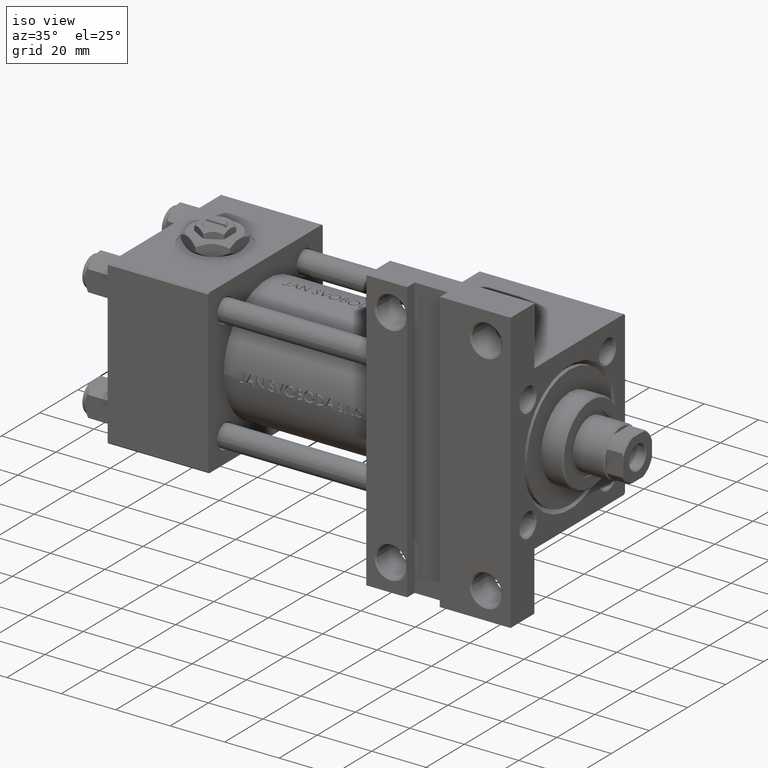
[diagram: clean part render]
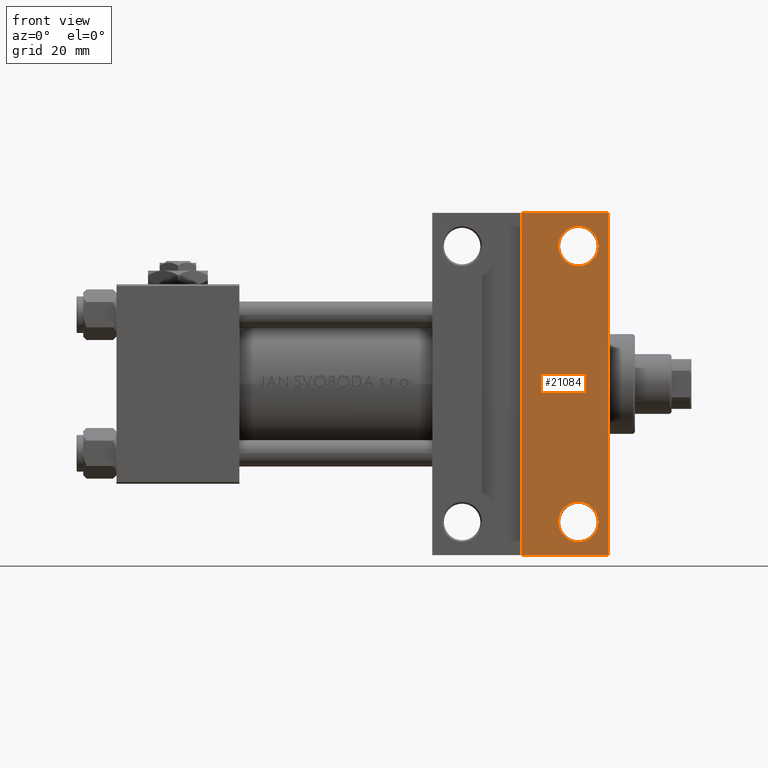
[diagram: tour spotlight — one face highlighted and labeled with its STEP entity id]
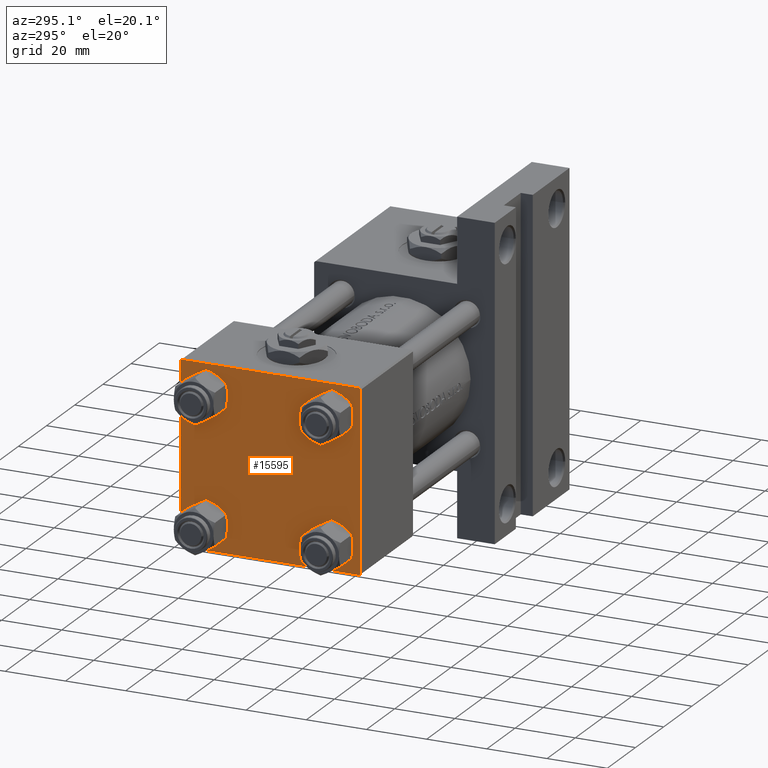
[diagram: tour spotlight — one face highlighted and labeled with its STEP entity id]
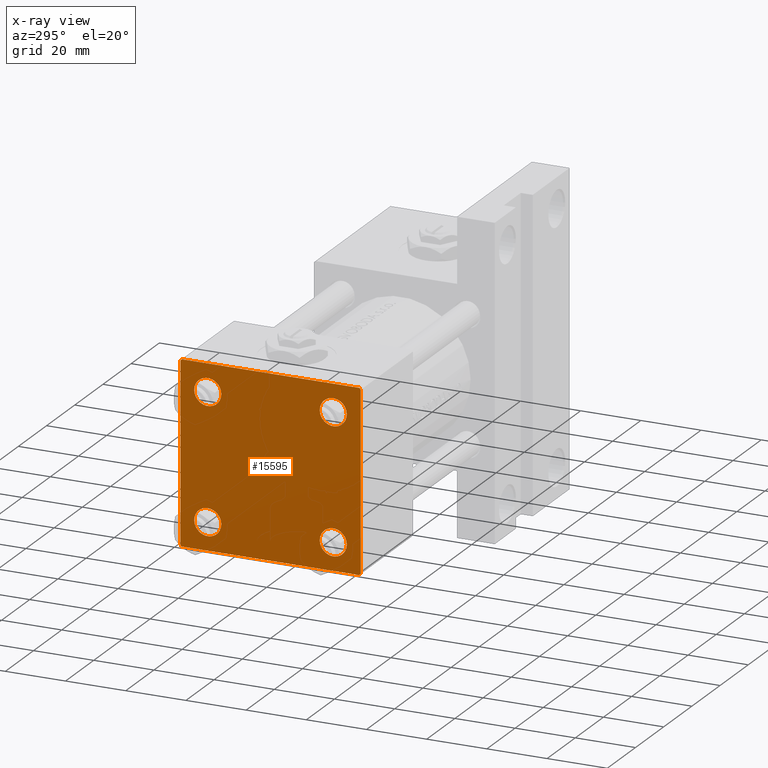
[diagram: x-ray of the same camera — body ghosted, this tour face saturated]
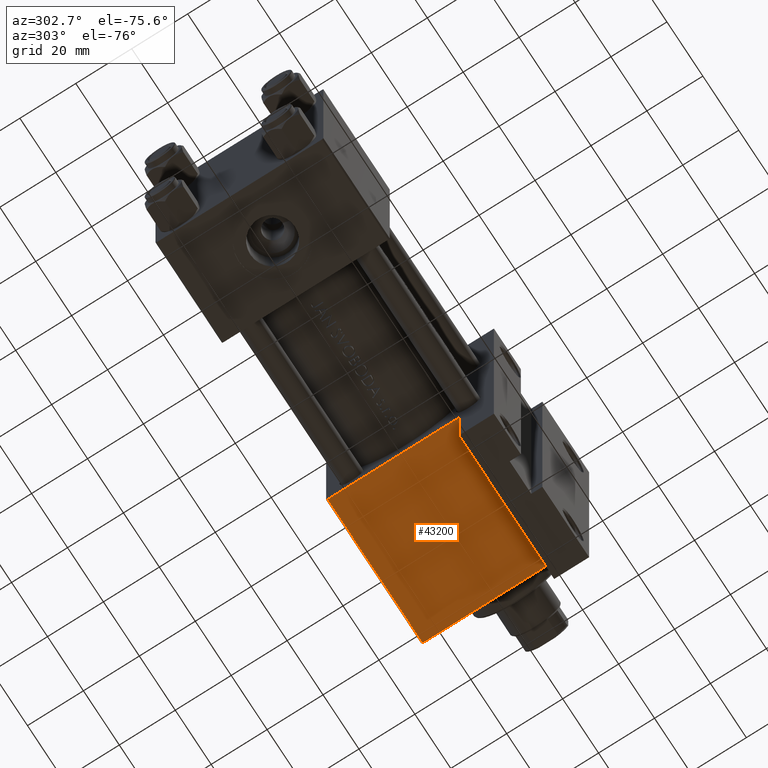
[diagram: tour spotlight — one face highlighted and labeled with its STEP entity id]
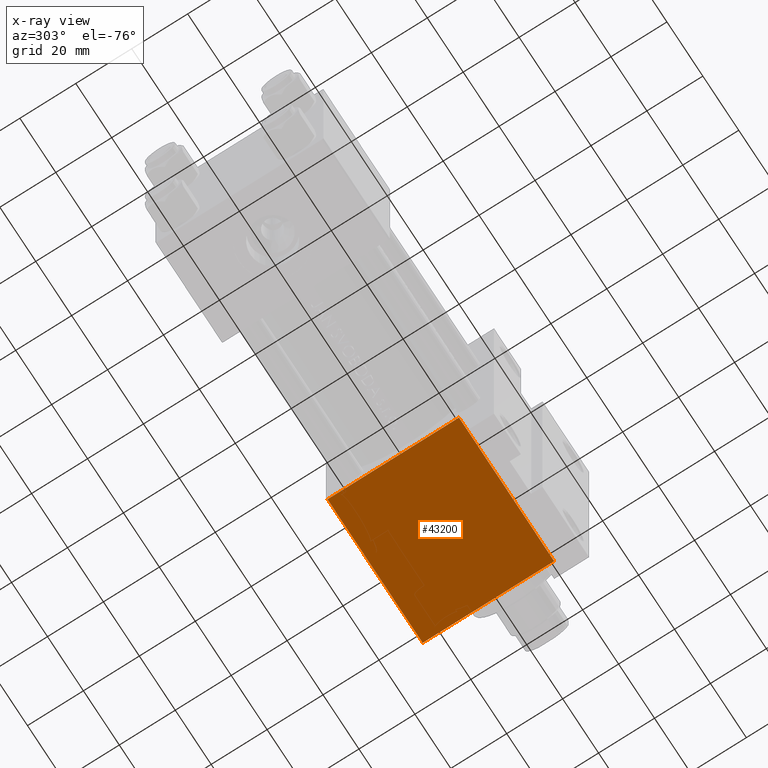
[diagram: x-ray of the same camera — body ghosted, this tour face saturated]
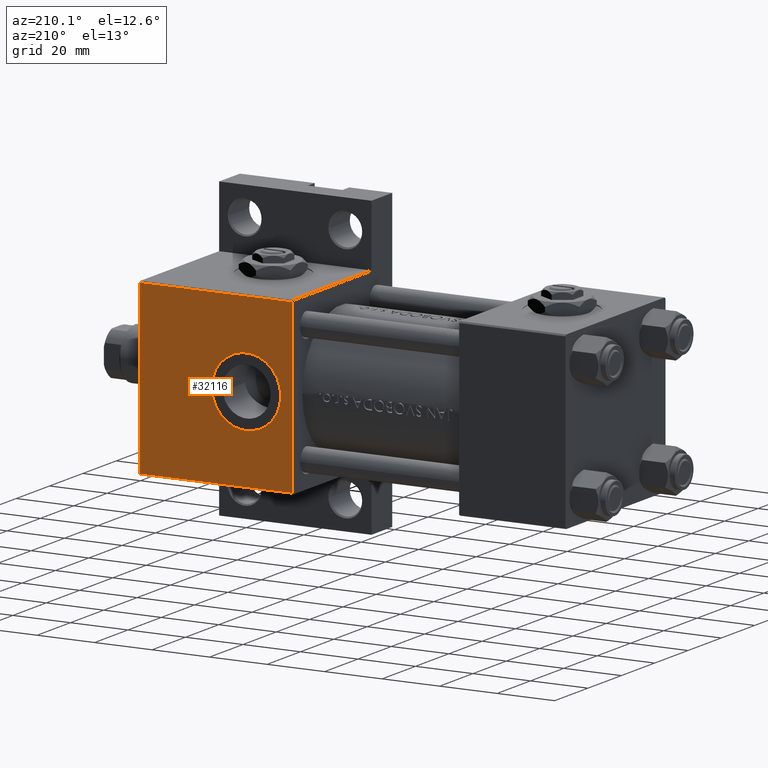
[diagram: tour spotlight — one face highlighted and labeled with its STEP entity id]
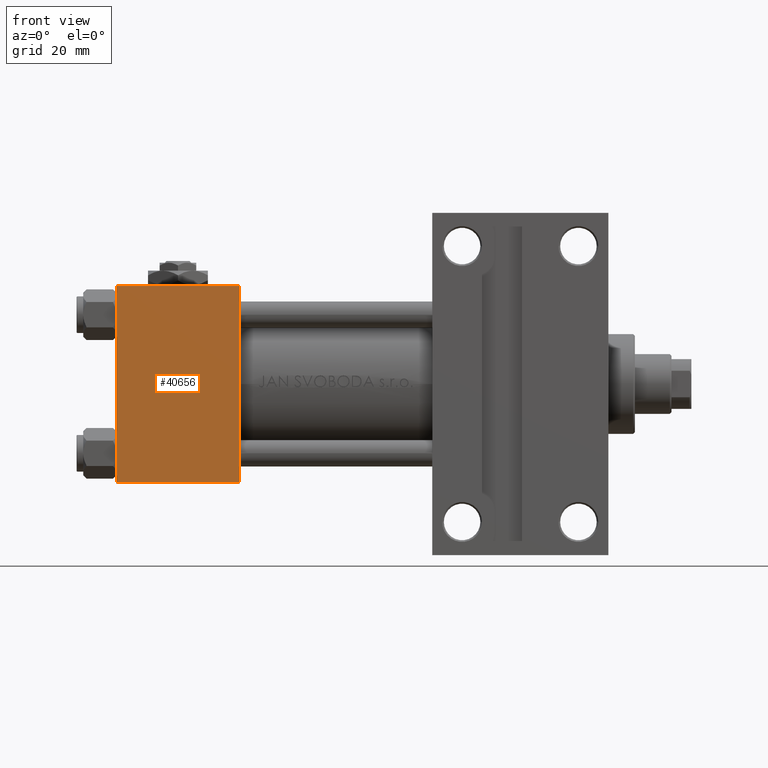
[diagram: tour spotlight — one face highlighted and labeled with its STEP entity id]
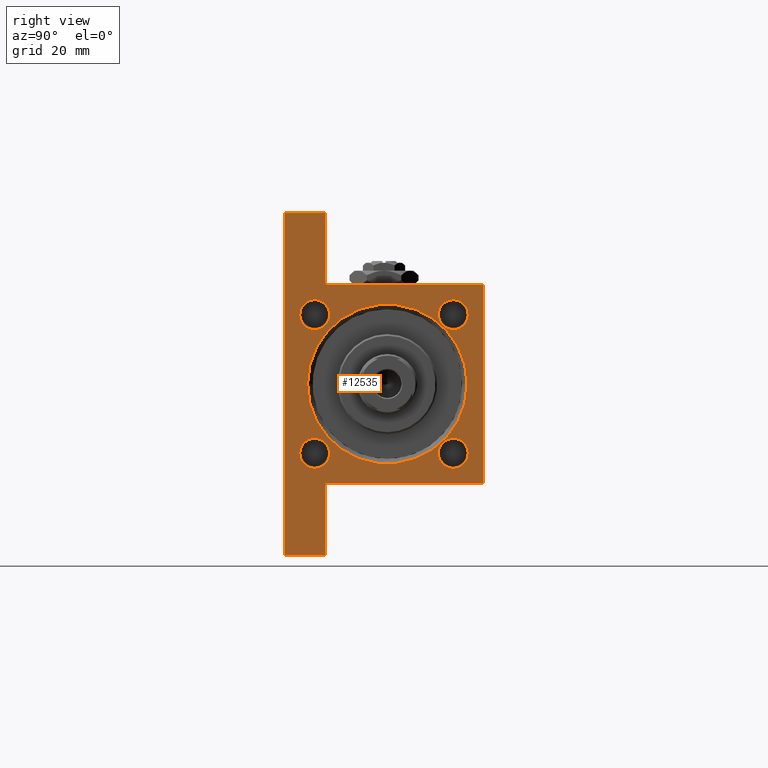
[diagram: tour spotlight — one face highlighted and labeled with its STEP entity id]
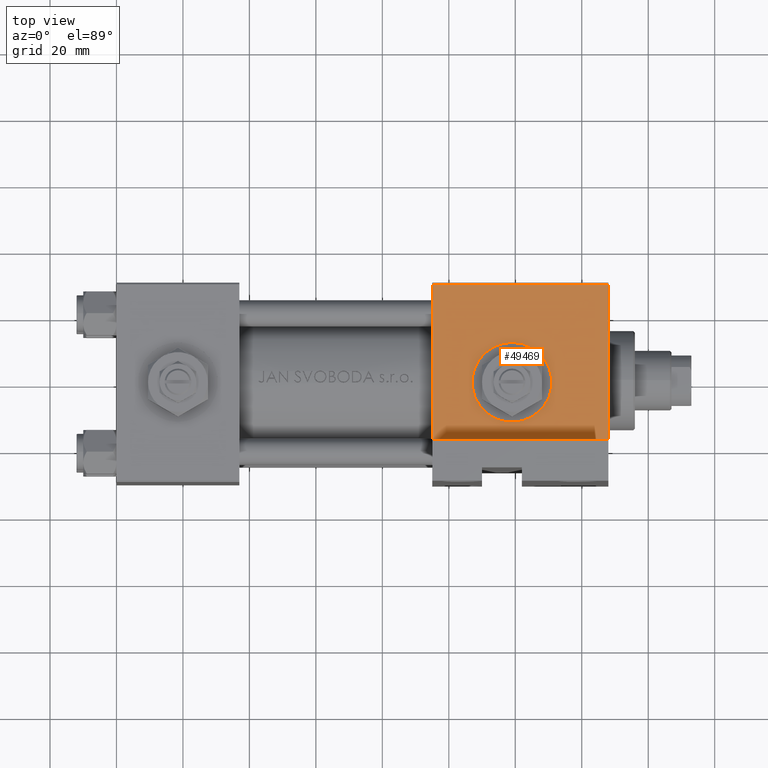
[diagram: tour spotlight — one face highlighted and labeled with its STEP entity id]
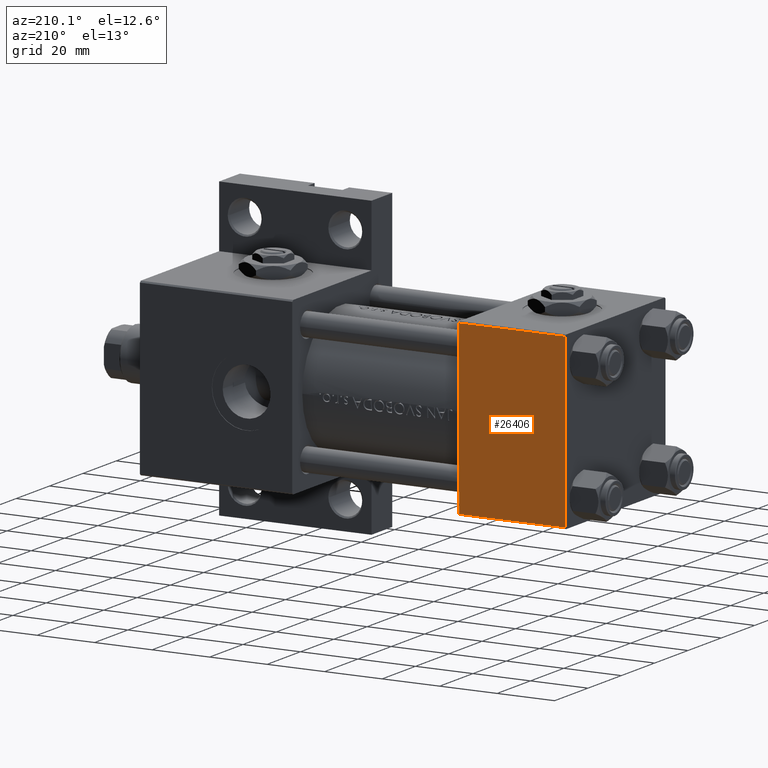
[diagram: tour spotlight — one face highlighted and labeled with its STEP entity id]
A machine part: a face-by-face anatomy tour. The part has 1215 B-rep faces; the first image is the clean iso view, then the 8 largest visible faces are spotlighted one at a time (largest first), each with its STEP entity span.

Face 1 — front view, entity #21084. In plain terms, the highlighted planar face has unit normal (0, -1, -0).
Definition (entity closure, byte-faithful):
#5 = DIRECTION ( 'NONE',  ( 0.000000000000000000, 1.156482317317871478E-16, -1.000000000000000000 ) ) ;
#73 = DIRECTION ( 'NONE',  ( -1.000000000000000000, -0.000000000000000000, -0.000000000000000000 ) ) ;
#717 = CARTESIAN_POINT ( 'NONE',  ( 138.9999999999999432, -41.50000000000000000, -30.00000000000000000 ) ) ;
#1910 = VERTEX_POINT ( 'NONE', #36913 ) ;
#2028 = VERTEX_POINT ( 'NONE', #23738 ) ;
#2398 = EDGE_LOOP ( 'NONE', ( #33150, #19636, #13471, #43222 ) ) ;
#2455 = CARTESIAN_POINT ( 'NONE',  ( 138.9999999999999432, -41.50000000000000000, -30.00000000000000000 ) ) ;
#3397 = LINE ( 'NONE', #34950, #11308 ) ;
#3834 = CARTESIAN_POINT ( 'NONE',  ( 148.0000000000000000, 30.00000000000000000, -29.99999999999999289 ) ) ;
#4335 = CIRCLE ( 'NONE', #7589, 5.999499999999962974 ) ;
#4573 = ORIENTED_EDGE ( 'NONE', *, *, #27141, .T. ) ;
#4603 = DIRECTION ( 'NONE',  ( 0.000000000000000000, 1.000000000000000000, 1.156482317317871478E-16 ) ) ;
#6635 = EDGE_CURVE ( 'NONE', #29939, #8865, #3397, .T. ) ;
#7512 = VECTOR ( 'NONE', #73, 1000.000000000000000 ) ;
#7589 = AXIS2_PLACEMENT_3D ( 'NONE', #19429, #15612, #11498 ) ;
#8716 = ORIENTED_EDGE ( 'NONE', *, *, #11161, .T. ) ;
#8865 = VERTEX_POINT ( 'NONE', #44891 ) ;
#8924 = CARTESIAN_POINT ( 'NONE',  ( 121.9999999999999858, -51.49999999999999289, -29.99999999999999645 ) ) ;
#9333 = ORIENTED_EDGE ( 'NONE', *, *, #29902, .T. ) ;
#9692 = DIRECTION ( 'NONE',  ( -0.000000000000000000, -1.000000000000000000, -0.000000000000000000 ) ) ;
#9785 = EDGE_CURVE ( 'NONE', #40105, #36055, #16403, .T. ) ;
#11161 = EDGE_CURVE ( 'NONE', #29509, #2028, #14465, .T. ) ;
#11202 = DIRECTION ( 'NONE',  ( -0.000000000000000000, -1.156482317317871478E-16, 1.000000000000000000 ) ) ;
#11308 = VECTOR ( 'NONE', #50618, 1000.000000000000000 ) ;
#11498 = DIRECTION ( 'NONE',  ( 0.000000000000000000, 1.000000000000000000, 0.000000000000000000 ) ) ;
#11712 = CARTESIAN_POINT ( 'NONE',  ( 138.9999999999999432, 41.50000000000000000, -29.99999999999999289 ) ) ;
#12041 = VECTOR ( 'NONE', #9692, 1000.000000000000000 ) ;
#12311 = FACE_BOUND ( 'NONE', #50244, .T. ) ;
#12781 = DIRECTION ( 'NONE',  ( -0.000000000000000000, -1.156482317317871478E-16, 1.000000000000000000 ) ) ;
#13471 = ORIENTED_EDGE ( 'NONE', *, *, #6635, .T. ) ;
#13751 = VECTOR ( 'NONE', #33998, 1000.000000000000000 ) ;
#14465 = CIRCLE ( 'NONE', #39844, 5.999499999999962974 ) ;
#15536 = AXIS2_PLACEMENT_3D ( 'NONE', #3834, #5, #4603 ) ;
#15612 = DIRECTION ( 'NONE',  ( -0.000000000000000000, -1.156482317317871478E-16, 1.000000000000000000 ) ) ;
#16403 = CIRCLE ( 'NONE', #42593, 5.999499999999990507 ) ;
#16427 = CARTESIAN_POINT ( 'NONE',  ( 133.0004999999999598, -41.50000000000000000, -30.00000000000000000 ) ) ;
#16646 = LINE ( 'NONE', #8924, #12041 ) ;
#18338 = CARTESIAN_POINT ( 'NONE',  ( 95.00000000000000000, 51.50000000000000711, -29.99999999999999645 ) ) ;
#19429 = CARTESIAN_POINT ( 'NONE',  ( 138.9999999999999432, 41.50000000000000000, -29.99999999999999289 ) ) ;
#19636 = ORIENTED_EDGE ( 'NONE', *, *, #44847, .T. ) ;
#21084 = ADVANCED_FACE ( 'NONE', ( #31805, #47482, #12311 ), #27190, .T. ) ;
#21293 = ORIENTED_EDGE ( 'NONE', *, *, #9785, .T. ) ;
#22908 = LINE ( 'NONE', #23392, #7512 ) ;
#23392 = CARTESIAN_POINT ( 'NONE',  ( 94.99999999999998579, -51.50000000000000711, -29.99999999999999645 ) ) ;
#23738 = CARTESIAN_POINT ( 'NONE',  ( 133.0004999999999882, 41.50000000000000000, -29.99999999999999289 ) ) ;
#23911 = CIRCLE ( 'NONE', #37876, 5.999499999999990507 ) ;
#24938 = CARTESIAN_POINT ( 'NONE',  ( 144.9994999999999550, -41.50000000000000000, -30.00000000000000000 ) ) ;
#25056 = DIRECTION ( 'NONE',  ( 0.000000000000000000, 1.000000000000000000, 0.000000000000000000 ) ) ;
#26281 = LINE ( 'NONE', #18338, #13751 ) ;
#27141 = EDGE_CURVE ( 'NONE', #36055, #40105, #23911, .T. ) ;
#27190 = PLANE ( 'NONE',  #15536 ) ;
#27321 = EDGE_LOOP ( 'NONE', ( #4573, #21293 ) ) ;
#27344 = DIRECTION ( 'NONE',  ( 0.000000000000000000, 1.000000000000000000, 0.000000000000000000 ) ) ;
#29509 = VERTEX_POINT ( 'NONE', #47477 ) ;
#29902 = EDGE_CURVE ( 'NONE', #2028, #29509, #4335, .T. ) ;
#29939 = VERTEX_POINT ( 'NONE', #42797 ) ;
#30031 = EDGE_CURVE ( 'NONE', #8865, #1910, #22908, .T. ) ;
#31805 = FACE_OUTER_BOUND ( 'NONE', #2398, .T. ) ;
#33150 = ORIENTED_EDGE ( 'NONE', *, *, #42464, .F. ) ;
#33998 = DIRECTION ( 'NONE',  ( 1.000000000000000000, -2.618450529776313247E-16, 0.000000000000000000 ) ) ;
#34017 = DIRECTION ( 'NONE',  ( 0.000000000000000000, 1.000000000000000000, 0.000000000000000000 ) ) ;
#34950 = CARTESIAN_POINT ( 'NONE',  ( 148.0000000000000000, 30.00000000000000000, -29.99999999999999289 ) ) ;
#36055 = VERTEX_POINT ( 'NONE', #16427 ) ;
#36870 = DIRECTION ( 'NONE',  ( -0.000000000000000000, -1.156482317317871478E-16, 1.000000000000000000 ) ) ;
#36913 = CARTESIAN_POINT ( 'NONE',  ( 121.9999999999999858, -51.49999999999999289, -29.99999999999999645 ) ) ;
#37876 = AXIS2_PLACEMENT_3D ( 'NONE', #2455, #36870, #34017 ) ;
#38217 = VERTEX_POINT ( 'NONE', #45156 ) ;
#39844 = AXIS2_PLACEMENT_3D ( 'NONE', #11712, #11202, #27344 ) ;
#40105 = VERTEX_POINT ( 'NONE', #24938 ) ;
#42464 = EDGE_CURVE ( 'NONE', #38217, #1910, #16646, .T. ) ;
#42593 = AXIS2_PLACEMENT_3D ( 'NONE', #717, #12781, #25056 ) ;
#42797 = CARTESIAN_POINT ( 'NONE',  ( 148.0000000000000000, 51.49999999999999289, -29.99999999999999645 ) ) ;
#43222 = ORIENTED_EDGE ( 'NONE', *, *, #30031, .T. ) ;
#44847 = EDGE_CURVE ( 'NONE', #38217, #29939, #26281, .T. ) ;
#44891 = CARTESIAN_POINT ( 'NONE',  ( 148.0000000000000000, -51.50000000000000711, -29.99999999999999645 ) ) ;
#45156 = CARTESIAN_POINT ( 'NONE',  ( 121.9999999999999858, 51.50000000000000711, -29.99999999999999645 ) ) ;
#47477 = CARTESIAN_POINT ( 'NONE',  ( 144.9994999999999266, 41.50000000000000000, -29.99999999999999289 ) ) ;
#47482 = FACE_BOUND ( 'NONE', #27321, .T. ) ;
#50244 = EDGE_LOOP ( 'NONE', ( #9333, #8716 ) ) ;
#50618 = DIRECTION ( 'NONE',  ( 0.000000000000000000, -1.000000000000000000, -1.156482317317871478E-16 ) ) ;

Face 2 — auxiliary view, entity #15595. An x-ray twin of the same camera follows (body ghosted, this face saturated) — the face is partly hidden behind the body. In plain terms, the highlighted planar face has unit normal (-1, 0, -0).
Definition (entity closure, byte-faithful):
#1312 = CARTESIAN_POINT ( 'NONE',  ( 0.000000000000000000, -29.49999999999998579, 29.99999999999999289 ) ) ;
#1816 = CARTESIAN_POINT ( 'NONE',  ( 0.000000000000000000, 20.84999999999999787, -16.34999999999998366 ) ) ;
#1828 = VECTOR ( 'NONE', #9713, 1000.000000000000114 ) ;
#2154 = ORIENTED_EDGE ( 'NONE', *, *, #27610, .T. ) ;
#2324 = CARTESIAN_POINT ( 'NONE',  ( 0.000000000000000000, 20.84999999999999787, -25.35000000000001918 ) ) ;
#2488 = ORIENTED_EDGE ( 'NONE', *, *, #23719, .T. ) ;
#2624 = VECTOR ( 'NONE', #21933, 1000.000000000000114 ) ;
#2674 = ORIENTED_EDGE ( 'NONE', *, *, #31800, .T. ) ;
#2782 = CARTESIAN_POINT ( 'NONE',  ( 0.000000000000000000, 20.84999999999999787, 20.85000000000000142 ) ) ;
#3057 = EDGE_CURVE ( 'NONE', #30359, #33464, #28402, .T. ) ;
#3102 = AXIS2_PLACEMENT_3D ( 'NONE', #43388, #9700, #23868 ) ;
#3391 = EDGE_CURVE ( 'NONE', #41797, #7950, #16148, .T. ) ;
#4515 = DIRECTION ( 'NONE',  ( 0.000000000000000000, -1.000000000000000000, -1.156482317317871725E-16 ) ) ;
#4825 = AXIS2_PLACEMENT_3D ( 'NONE', #2782, #22273, #34094 ) ;
#4939 = DIRECTION ( 'NONE',  ( 0.000000000000000000, 0.000000000000000000, 1.000000000000000000 ) ) ;
#5405 = DIRECTION ( 'NONE',  ( 0.000000000000000000, 0.000000000000000000, 1.000000000000000000 ) ) ;
#5843 = FACE_BOUND ( 'NONE', #24965, .T. ) ;
#5898 = EDGE_LOOP ( 'NONE', ( #33958, #35536 ) ) ;
#6182 = DIRECTION ( 'NONE',  ( 1.000000000000000000, -0.000000000000000000, 0.000000000000000000 ) ) ;
#6436 = CARTESIAN_POINT ( 'NONE',  ( 0.000000000000000000, -20.84999999999999076, -20.85000000000000497 ) ) ;
#6551 = CARTESIAN_POINT ( 'NONE',  ( 0.000000000000000000, 29.74999999999999645, 29.74999999999999645 ) ) ;
#6623 = CARTESIAN_POINT ( 'NONE',  ( 0.000000000000000000, 20.84999999999999787, 20.85000000000000142 ) ) ;
#7092 = CARTESIAN_POINT ( 'NONE',  ( 0.000000000000000000, 29.74999999999957723, -29.75000000000040501 ) ) ;
#7254 = DIRECTION ( 'NONE',  ( 0.000000000000000000, 0.000000000000000000, -1.000000000000000000 ) ) ;
#7274 = ORIENTED_EDGE ( 'NONE', *, *, #3057, .T. ) ;
#7723 = CARTESIAN_POINT ( 'NONE',  ( 0.000000000000000000, -20.84999999999999076, 20.85000000000000497 ) ) ;
#7950 = VERTEX_POINT ( 'NONE', #9658 ) ;
#8197 = VERTEX_POINT ( 'NONE', #42165 ) ;
#8732 = FACE_BOUND ( 'NONE', #5898, .T. ) ;
#8767 = EDGE_CURVE ( 'NONE', #7950, #41797, #25324, .T. ) ;
#8881 = VECTOR ( 'NONE', #28959, 1000.000000000000000 ) ;
#8957 = DIRECTION ( 'NONE',  ( 0.000000000000000000, -0.7071067811865474617, 0.7071067811865474617 ) ) ;
#9658 = CARTESIAN_POINT ( 'NONE',  ( 0.000000000000000000, 20.84999999999999787, 25.35000000000001918 ) ) ;
#9700 = DIRECTION ( 'NONE',  ( -1.000000000000000000, 0.000000000000000000, -0.000000000000000000 ) ) ;
#9713 = DIRECTION ( 'NONE',  ( -0.000000000000000000, 0.7071067811865474617, 0.7071067811865474617 ) ) ;
#9881 = ORIENTED_EDGE ( 'NONE', *, *, #33819, .T. ) ;
#10686 = CIRCLE ( 'NONE', #40182, 4.500000000000017764 ) ;
#10801 = ORIENTED_EDGE ( 'NONE', *, *, #18601, .F. ) ;
#10876 = CARTESIAN_POINT ( 'NONE',  ( 0.000000000000000000, -20.84999999999999076, -20.85000000000000497 ) ) ;
#11150 = CARTESIAN_POINT ( 'NONE',  ( 0.000000000000000000, 29.99999999999999289, -29.50000000000000000 ) ) ;
#11179 = ORIENTED_EDGE ( 'NONE', *, *, #25491, .T. ) ;
#11199 = AXIS2_PLACEMENT_3D ( 'NONE', #6623, #37953, #34089 ) ;
#11240 = ORIENTED_EDGE ( 'NONE', *, *, #27120, .T. ) ;
#11523 = VERTEX_POINT ( 'NONE', #1816 ) ;
#12483 = CARTESIAN_POINT ( 'NONE',  ( 0.000000000000000000, 29.99999999999999289, -30.00000000000000000 ) ) ;
#13149 = EDGE_LOOP ( 'NONE', ( #11179, #37331 ) ) ;
#14726 = LINE ( 'NONE', #42922, #23188 ) ;
#14735 = DIRECTION ( 'NONE',  ( 1.000000000000000000, -0.000000000000000000, 0.000000000000000000 ) ) ;
#15507 = VERTEX_POINT ( 'NONE', #19036 ) ;
#15595 = ADVANCED_FACE ( 'NONE', ( #5843, #24119, #31579, #8732, #31842 ), #25588, .T. ) ;
#16148 = CIRCLE ( 'NONE', #11199, 4.500000000000017764 ) ;
#16749 = CARTESIAN_POINT ( 'NONE',  ( 0.000000000000000000, 20.84999999999999787, -20.85000000000000142 ) ) ;
#16843 = CARTESIAN_POINT ( 'NONE',  ( 0.000000000000000000, -30.00000000000000000, 29.99999999999999289 ) ) ;
#16918 = CARTESIAN_POINT ( 'NONE',  ( 0.000000000000000000, -29.75000000000001066, -29.75000000000001066 ) ) ;
#17385 = EDGE_CURVE ( 'NONE', #41821, #25924, #24364, .T. ) ;
#17655 = DIRECTION ( 'NONE',  ( 1.000000000000000000, -0.000000000000000000, 0.000000000000000000 ) ) ;
#18601 = EDGE_CURVE ( 'NONE', #15507, #25870, #36093, .T. ) ;
#18665 = VECTOR ( 'NONE', #36344, 1000.000000000000000 ) ;
#18938 = VERTEX_POINT ( 'NONE', #2324 ) ;
#19036 = CARTESIAN_POINT ( 'NONE',  ( 0.000000000000000000, -30.00000000000000000, 29.49999999999999289 ) ) ;
#19158 = LINE ( 'NONE', #7092, #23943 ) ;
#19751 = AXIS2_PLACEMENT_3D ( 'NONE', #21060, #40580, #5405 ) ;
#20062 = EDGE_CURVE ( 'NONE', #46352, #23871, #36670, .T. ) ;
#20484 = DIRECTION ( 'NONE',  ( 0.000000000000000000, 0.000000000000000000, 1.000000000000000000 ) ) ;
#21060 = CARTESIAN_POINT ( 'NONE',  ( 0.000000000000000000, 20.84999999999999787, -20.85000000000000142 ) ) ;
#21771 = AXIS2_PLACEMENT_3D ( 'NONE', #16749, #41129, #4939 ) ;
#21933 = DIRECTION ( 'NONE',  ( 0.000000000000000000, 0.7071067811865474617, -0.7071067811865474617 ) ) ;
#22008 = EDGE_LOOP ( 'NONE', ( #9881, #2674, #42983, #28041, #10801, #2154, #34024, #11240 ) ) ;
#22273 = DIRECTION ( 'NONE',  ( 1.000000000000000000, -0.000000000000000000, 0.000000000000000000 ) ) ;
#22502 = CARTESIAN_POINT ( 'NONE',  ( 0.000000000000000000, -20.84999999999999076, 25.35000000000002274 ) ) ;
#23131 = DIRECTION ( 'NONE',  ( 1.000000000000000000, -0.000000000000000000, 0.000000000000000000 ) ) ;
#23188 = VECTOR ( 'NONE', #7254, 1000.000000000000000 ) ;
#23592 = VECTOR ( 'NONE', #4515, 1000.000000000000000 ) ;
#23719 = EDGE_CURVE ( 'NONE', #25924, #41821, #10686, .T. ) ;
#23868 = DIRECTION ( 'NONE',  ( -0.000000000000000000, 0.000000000000000000, 1.000000000000000000 ) ) ;
#23871 = VERTEX_POINT ( 'NONE', #1312 ) ;
#23943 = VECTOR ( 'NONE', #46634, 999.9999999999998863 ) ;
#24119 = FACE_BOUND ( 'NONE', #34551, .T. ) ;
#24364 = CIRCLE ( 'NONE', #44992, 4.500000000000017764 ) ;
#24958 = AXIS2_PLACEMENT_3D ( 'NONE', #10876, #14735, #46545 ) ;
#24965 = EDGE_LOOP ( 'NONE', ( #2488, #46083 ) ) ;
#25148 = ORIENTED_EDGE ( 'NONE', *, *, #38873, .T. ) ;
#25324 = CIRCLE ( 'NONE', #4825, 4.500000000000017764 ) ;
#25352 = CARTESIAN_POINT ( 'NONE',  ( 0.000000000000000000, 29.99999999999999289, 30.00000000000000000 ) ) ;
#25491 = EDGE_CURVE ( 'NONE', #11523, #18938, #41907, .T. ) ;
#25588 = PLANE ( 'NONE',  #3102 ) ;
#25870 = VERTEX_POINT ( 'NONE', #47144 ) ;
#25924 = VERTEX_POINT ( 'NONE', #22502 ) ;
#26101 = LINE ( 'NONE', #29958, #1828 ) ;
#26850 = LINE ( 'NONE', #12483, #23592 ) ;
#27120 = EDGE_CURVE ( 'NONE', #46352, #45679, #30154, .T. ) ;
#27610 = EDGE_CURVE ( 'NONE', #15507, #23871, #26101, .T. ) ;
#28041 = ORIENTED_EDGE ( 'NONE', *, *, #33547, .T. ) ;
#28402 = CIRCLE ( 'NONE', #34172, 4.500000000000017764 ) ;
#28412 = CARTESIAN_POINT ( 'NONE',  ( 0.000000000000000000, 20.84999999999999787, 16.34999999999998366 ) ) ;
#28959 = DIRECTION ( 'NONE',  ( 0.000000000000000000, -1.000000000000000000, -1.156482317317871725E-16 ) ) ;
#29718 = VECTOR ( 'NONE', #8957, 1000.000000000000114 ) ;
#29958 = CARTESIAN_POINT ( 'NONE',  ( -0.000000000000000000, -29.74999999999999645, 29.74999999999999645 ) ) ;
#30154 = LINE ( 'NONE', #6551, #2624 ) ;
#30359 = VERTEX_POINT ( 'NONE', #35996 ) ;
#31579 = FACE_BOUND ( 'NONE', #13149, .T. ) ;
#31800 = EDGE_CURVE ( 'NONE', #45792, #8197, #19158, .T. ) ;
#31842 = FACE_OUTER_BOUND ( 'NONE', #22008, .T. ) ;
#33464 = VERTEX_POINT ( 'NONE', #39756 ) ;
#33547 = EDGE_CURVE ( 'NONE', #39135, #25870, #44118, .T. ) ;
#33819 = EDGE_CURVE ( 'NONE', #45679, #45792, #14726, .T. ) ;
#33958 = ORIENTED_EDGE ( 'NONE', *, *, #8767, .T. ) ;
#34024 = ORIENTED_EDGE ( 'NONE', *, *, #20062, .F. ) ;
#34089 = DIRECTION ( 'NONE',  ( 0.000000000000000000, 0.000000000000000000, 1.000000000000000000 ) ) ;
#34094 = DIRECTION ( 'NONE',  ( 0.000000000000000000, 0.000000000000000000, 1.000000000000000000 ) ) ;
#34172 = AXIS2_PLACEMENT_3D ( 'NONE', #6436, #6182, #41610 ) ;
#34509 = CARTESIAN_POINT ( 'NONE',  ( 0.000000000000000000, 29.99999999999999289, 29.50000000000000000 ) ) ;
#34551 = EDGE_LOOP ( 'NONE', ( #25148, #7274 ) ) ;
#35536 = ORIENTED_EDGE ( 'NONE', *, *, #3391, .T. ) ;
#35867 = CARTESIAN_POINT ( 'NONE',  ( 0.000000000000000000, -20.84999999999999076, 16.34999999999998721 ) ) ;
#35996 = CARTESIAN_POINT ( 'NONE',  ( 0.000000000000000000, -20.84999999999999076, -25.35000000000002274 ) ) ;
#36093 = LINE ( 'NONE', #16843, #18665 ) ;
#36344 = DIRECTION ( 'NONE',  ( 0.000000000000000000, 0.000000000000000000, -1.000000000000000000 ) ) ;
#36670 = LINE ( 'NONE', #25352, #8881 ) ;
#36760 = CARTESIAN_POINT ( 'NONE',  ( 0.000000000000000000, -29.50000000000000000, -30.00000000000000711 ) ) ;
#37166 = CARTESIAN_POINT ( 'NONE',  ( 0.000000000000000000, -20.84999999999999076, 20.85000000000000497 ) ) ;
#37331 = ORIENTED_EDGE ( 'NONE', *, *, #41038, .T. ) ;
#37953 = DIRECTION ( 'NONE',  ( 1.000000000000000000, -0.000000000000000000, 0.000000000000000000 ) ) ;
#38873 = EDGE_CURVE ( 'NONE', #33464, #30359, #40566, .T. ) ;
#39135 = VERTEX_POINT ( 'NONE', #36760 ) ;
#39756 = CARTESIAN_POINT ( 'NONE',  ( 0.000000000000000000, -20.84999999999999076, -16.34999999999998721 ) ) ;
#40182 = AXIS2_PLACEMENT_3D ( 'NONE', #7723, #23131, #42656 ) ;
#40566 = CIRCLE ( 'NONE', #24958, 4.500000000000017764 ) ;
#40580 = DIRECTION ( 'NONE',  ( 1.000000000000000000, -0.000000000000000000, 0.000000000000000000 ) ) ;
#41038 = EDGE_CURVE ( 'NONE', #18938, #11523, #43917, .T. ) ;
#41129 = DIRECTION ( 'NONE',  ( 1.000000000000000000, -0.000000000000000000, 0.000000000000000000 ) ) ;
#41344 = CARTESIAN_POINT ( 'NONE',  ( 0.000000000000000000, 29.49999999999999289, 30.00000000000000000 ) ) ;
#41610 = DIRECTION ( 'NONE',  ( 0.000000000000000000, 0.000000000000000000, 1.000000000000000000 ) ) ;
#41797 = VERTEX_POINT ( 'NONE', #28412 ) ;
#41821 = VERTEX_POINT ( 'NONE', #35867 ) ;
#41907 = CIRCLE ( 'NONE', #19751, 4.500000000000017764 ) ;
#42165 = CARTESIAN_POINT ( 'NONE',  ( 0.000000000000000000, 29.49999999999997868, -30.00000000000000000 ) ) ;
#42656 = DIRECTION ( 'NONE',  ( 0.000000000000000000, 0.000000000000000000, 1.000000000000000000 ) ) ;
#42922 = CARTESIAN_POINT ( 'NONE',  ( 0.000000000000000000, 29.99999999999999289, 30.00000000000000000 ) ) ;
#42983 = ORIENTED_EDGE ( 'NONE', *, *, #45549, .T. ) ;
#43388 = CARTESIAN_POINT ( 'NONE',  ( 0.000000000000000000, 0.000000000000000000, 0.000000000000000000 ) ) ;
#43917 = CIRCLE ( 'NONE', #21771, 4.500000000000017764 ) ;
#44118 = LINE ( 'NONE', #16918, #29718 ) ;
#44992 = AXIS2_PLACEMENT_3D ( 'NONE', #37166, #17655, #20484 ) ;
#45549 = EDGE_CURVE ( 'NONE', #8197, #39135, #26850, .T. ) ;
#45679 = VERTEX_POINT ( 'NONE', #34509 ) ;
#45792 = VERTEX_POINT ( 'NONE', #11150 ) ;
#46083 = ORIENTED_EDGE ( 'NONE', *, *, #17385, .T. ) ;
#46352 = VERTEX_POINT ( 'NONE', #41344 ) ;
#46545 = DIRECTION ( 'NONE',  ( 0.000000000000000000, 0.000000000000000000, 1.000000000000000000 ) ) ;
#46634 = DIRECTION ( 'NONE',  ( -0.000000000000000000, -0.7071067811865574537, -0.7071067811865376918 ) ) ;
#47144 = CARTESIAN_POINT ( 'NONE',  ( 0.000000000000000000, -30.00000000000000000, -29.50000000000001776 ) ) ;

Face 3 — auxiliary view, entity #43200. An x-ray twin of the same camera follows (body ghosted, this face saturated) — the face is partly hidden behind the body. In plain terms, the highlighted planar face has unit normal (0, 0, -1).
Definition (entity closure, byte-faithful):
#4028 = LINE ( 'NONE', #16856, #38423 ) ;
#4281 = LINE ( 'NONE', #19934, #28983 ) ;
#4567 = ORIENTED_EDGE ( 'NONE', *, *, #35584, .T. ) ;
#6904 = CARTESIAN_POINT ( 'NONE',  ( 148.0000000000000000, 30.00000000000000000, 30.00000000000000000 ) ) ;
#10268 = DIRECTION ( 'NONE',  ( -0.000000000000000000, 1.000000000000000000, 0.000000000000000000 ) ) ;
#10523 = FACE_OUTER_BOUND ( 'NONE', #15104, .T. ) ;
#11273 = PLANE ( 'NONE',  #19405 ) ;
#11981 = DIRECTION ( 'NONE',  ( 0.000000000000000000, 0.000000000000000000, -1.000000000000000000 ) ) ;
#14668 = VERTEX_POINT ( 'NONE', #43066 ) ;
#15104 = EDGE_LOOP ( 'NONE', ( #46334, #34614, #4567, #16179 ) ) ;
#15445 = VERTEX_POINT ( 'NONE', #38043 ) ;
#15544 = DIRECTION ( 'NONE',  ( 0.000000000000000000, 0.000000000000000000, -1.000000000000000000 ) ) ;
#16179 = ORIENTED_EDGE ( 'NONE', *, *, #20393, .T. ) ;
#16856 = CARTESIAN_POINT ( 'NONE',  ( 95.00000000000000000, 30.00000000000000000, -17.49999999999999645 ) ) ;
#19405 = AXIS2_PLACEMENT_3D ( 'NONE', #6904, #10268, #21792 ) ;
#19934 = CARTESIAN_POINT ( 'NONE',  ( 148.0000000000000000, 30.00000000000000000, 30.00000000000000000 ) ) ;
#20393 = EDGE_CURVE ( 'NONE', #47412, #15445, #4028, .T. ) ;
#20871 = EDGE_CURVE ( 'NONE', #40732, #15445, #50696, .T. ) ;
#21792 = DIRECTION ( 'NONE',  ( 0.000000000000000000, -0.000000000000000000, 1.000000000000000000 ) ) ;
#23207 = CARTESIAN_POINT ( 'NONE',  ( 95.00000000000000000, 30.00000000000000000, 30.00000000000000000 ) ) ;
#28983 = VECTOR ( 'NONE', #11981, 1000.000000000000000 ) ;
#29333 = VECTOR ( 'NONE', #47183, 1000.000000000000000 ) ;
#31512 = CARTESIAN_POINT ( 'NONE',  ( 148.0000000000000000, 30.00000000000000000, 29.50000000000000000 ) ) ;
#32166 = CARTESIAN_POINT ( 'NONE',  ( 95.00000000000000000, 30.00000000000000000, 29.50000000000000000 ) ) ;
#34614 = ORIENTED_EDGE ( 'NONE', *, *, #44428, .T. ) ;
#35584 = EDGE_CURVE ( 'NONE', #14668, #47412, #4281, .T. ) ;
#36357 = DIRECTION ( 'NONE',  ( -1.000000000000000000, 1.309225264888156623E-16, -0.000000000000000000 ) ) ;
#38043 = CARTESIAN_POINT ( 'NONE',  ( 95.00000000000000000, 30.00000000000000000, -17.49999999999998224 ) ) ;
#38423 = VECTOR ( 'NONE', #36357, 1000.000000000000000 ) ;
#40732 = VERTEX_POINT ( 'NONE', #32166 ) ;
#40886 = VECTOR ( 'NONE', #15544, 1000.000000000000000 ) ;
#43066 = CARTESIAN_POINT ( 'NONE',  ( 148.0000000000000000, 30.00000000000000000, 29.50000000000000000 ) ) ;
#43200 = ADVANCED_FACE ( 'NONE', ( #10523 ), #11273, .T. ) ;
#43323 = LINE ( 'NONE', #31512, #29333 ) ;
#44428 = EDGE_CURVE ( 'NONE', #40732, #14668, #43323, .T. ) ;
#46334 = ORIENTED_EDGE ( 'NONE', *, *, #20871, .F. ) ;
#46562 = CARTESIAN_POINT ( 'NONE',  ( 148.0000000000000000, 29.99999999999999289, -17.49999999999999645 ) ) ;
#47183 = DIRECTION ( 'NONE',  ( 1.000000000000000000, 0.000000000000000000, 0.000000000000000000 ) ) ;
#47412 = VERTEX_POINT ( 'NONE', #46562 ) ;
#50696 = LINE ( 'NONE', #23207, #40886 ) ;

Face 4 — auxiliary view, entity #32116. In plain terms, the highlighted planar face has unit normal (0, -1, -0).
Definition (entity closure, byte-faithful):
#375 = EDGE_CURVE ( 'NONE', #23648, #20896, #12445, .T. ) ;
#763 = VECTOR ( 'NONE', #7716, 1000.000000000000000 ) ;
#1728 = ORIENTED_EDGE ( 'NONE', *, *, #375, .F. ) ;
#1824 = VERTEX_POINT ( 'NONE', #29568 ) ;
#4275 = VECTOR ( 'NONE', #16040, 1000.000000000000000 ) ;
#4725 = CARTESIAN_POINT ( 'NONE',  ( 148.0000000000000000, -29.50000000000002487, 29.99999999999999289 ) ) ;
#6257 = VERTEX_POINT ( 'NONE', #39618 ) ;
#7716 = DIRECTION ( 'NONE',  ( -1.000000000000000000, 0.000000000000000000, 0.000000000000000000 ) ) ;
#9936 = CARTESIAN_POINT ( 'NONE',  ( 111.0000000000000000, -3.469446951953613794E-15, 29.99999999999999645 ) ) ;
#11830 = DIRECTION ( 'NONE',  ( 1.000000000000000000, 0.000000000000000000, 0.000000000000000000 ) ) ;
#12445 = LINE ( 'NONE', #35035, #4275 ) ;
#14004 = EDGE_CURVE ( 'NONE', #50084, #47518, #31738, .T. ) ;
#14615 = ORIENTED_EDGE ( 'NONE', *, *, #47719, .T. ) ;
#15332 = DIRECTION ( 'NONE',  ( 1.000000000000000000, 0.000000000000000000, 0.000000000000000000 ) ) ;
#15589 = DIRECTION ( 'NONE',  ( 0.000000000000000000, 0.000000000000000000, 1.000000000000000000 ) ) ;
#15698 = CARTESIAN_POINT ( 'NONE',  ( 148.0000000000000000, -29.50000000000002487, 29.99999999999999289 ) ) ;
#16040 = DIRECTION ( 'NONE',  ( 0.000000000000000000, -1.000000000000000000, -1.156482317317871478E-16 ) ) ;
#16195 = CIRCLE ( 'NONE', #41587, 11.99999999999999645 ) ;
#17844 = FACE_OUTER_BOUND ( 'NONE', #24790, .T. ) ;
#18694 = LINE ( 'NONE', #42815, #34742 ) ;
#18738 = CARTESIAN_POINT ( 'NONE',  ( 99.00000000000000000, -1.999870792976792017E-15, 29.99999999999999645 ) ) ;
#20027 = LINE ( 'NONE', #15698, #45575 ) ;
#20896 = VERTEX_POINT ( 'NONE', #4725 ) ;
#21829 = ORIENTED_EDGE ( 'NONE', *, *, #36997, .T. ) ;
#22180 = FACE_BOUND ( 'NONE', #39929, .T. ) ;
#22390 = ORIENTED_EDGE ( 'NONE', *, *, #43748, .F. ) ;
#23648 = VERTEX_POINT ( 'NONE', #38558 ) ;
#24249 = ORIENTED_EDGE ( 'NONE', *, *, #14004, .F. ) ;
#24790 = EDGE_LOOP ( 'NONE', ( #1728, #14615, #21829, #46299 ) ) ;
#27391 = DIRECTION ( 'NONE',  ( 0.000000000000000000, -1.000000000000000000, -1.156482317317871478E-16 ) ) ;
#29568 = CARTESIAN_POINT ( 'NONE',  ( 95.00000000000000000, 29.50000000000000000, 30.00000000000000000 ) ) ;
#29684 = AXIS2_PLACEMENT_3D ( 'NONE', #29886, #44541, #37864 ) ;
#29886 = CARTESIAN_POINT ( 'NONE',  ( 148.0000000000000000, 30.00000000000000000, 30.00000000000000000 ) ) ;
#31738 = CIRCLE ( 'NONE', #33406, 11.99999999999999645 ) ;
#32116 = ADVANCED_FACE ( 'NONE', ( #22180, #17844 ), #40954, .F. ) ;
#33406 = AXIS2_PLACEMENT_3D ( 'NONE', #9936, #49966, #45348 ) ;
#34690 = LINE ( 'NONE', #46758, #763 ) ;
#34742 = VECTOR ( 'NONE', #27391, 1000.000000000000000 ) ;
#35035 = CARTESIAN_POINT ( 'NONE',  ( 148.0000000000000000, 30.00000000000000000, 30.00000000000000000 ) ) ;
#36997 = EDGE_CURVE ( 'NONE', #1824, #6257, #18694, .T. ) ;
#37864 = DIRECTION ( 'NONE',  ( 0.000000000000000000, 1.000000000000000000, 1.156482317317871478E-16 ) ) ;
#38558 = CARTESIAN_POINT ( 'NONE',  ( 148.0000000000000000, 29.50000000000000000, 30.00000000000000000 ) ) ;
#39602 = CARTESIAN_POINT ( 'NONE',  ( 123.0000000000000000, -3.469446951953613794E-15, 29.99999999999999645 ) ) ;
#39618 = CARTESIAN_POINT ( 'NONE',  ( 95.00000000000000000, -29.50000000000002487, 29.99999999999999289 ) ) ;
#39929 = EDGE_LOOP ( 'NONE', ( #22390, #24249 ) ) ;
#40267 = EDGE_CURVE ( 'NONE', #6257, #20896, #20027, .T. ) ;
#40954 = PLANE ( 'NONE',  #29684 ) ;
#41587 = AXIS2_PLACEMENT_3D ( 'NONE', #47135, #15589, #15332 ) ;
#42815 = CARTESIAN_POINT ( 'NONE',  ( 95.00000000000000000, 30.00000000000000000, 30.00000000000000000 ) ) ;
#43748 = EDGE_CURVE ( 'NONE', #47518, #50084, #16195, .T. ) ;
#44541 = DIRECTION ( 'NONE',  ( 0.000000000000000000, 1.156482317317871478E-16, -1.000000000000000000 ) ) ;
#45348 = DIRECTION ( 'NONE',  ( 1.000000000000000000, 0.000000000000000000, 0.000000000000000000 ) ) ;
#45575 = VECTOR ( 'NONE', #11830, 1000.000000000000000 ) ;
#46299 = ORIENTED_EDGE ( 'NONE', *, *, #40267, .T. ) ;
#46758 = CARTESIAN_POINT ( 'NONE',  ( 95.00000000000000000, 29.50000000000000000, 30.00000000000000000 ) ) ;
#47135 = CARTESIAN_POINT ( 'NONE',  ( 111.0000000000000000, -3.469446951953613794E-15, 29.99999999999999645 ) ) ;
#47518 = VERTEX_POINT ( 'NONE', #39602 ) ;
#47719 = EDGE_CURVE ( 'NONE', #23648, #1824, #34690, .T. ) ;
#49966 = DIRECTION ( 'NONE',  ( 0.000000000000000000, 0.000000000000000000, 1.000000000000000000 ) ) ;
#50084 = VERTEX_POINT ( 'NONE', #18738 ) ;

Face 5 — front view, entity #40656. In plain terms, the highlighted planar face has unit normal (0, -1, -0).
Definition (entity closure, byte-faithful):
#2712 = CARTESIAN_POINT ( 'NONE',  ( 37.00000000000000000, 29.49999999999997868, -30.00000000000000000 ) ) ;
#4515 = DIRECTION ( 'NONE',  ( 0.000000000000000000, -1.000000000000000000, -1.156482317317871725E-16 ) ) ;
#5400 = DIRECTION ( 'NONE',  ( -1.000000000000000000, 0.000000000000000000, 0.000000000000000000 ) ) ;
#6526 = PLANE ( 'NONE',  #50496 ) ;
#7363 = CARTESIAN_POINT ( 'NONE',  ( 37.00000000000000000, -29.50000000000000000, -30.00000000000000711 ) ) ;
#7844 = CARTESIAN_POINT ( 'NONE',  ( 37.00000000000000000, 29.49999999999997868, -30.00000000000000000 ) ) ;
#7986 = VERTEX_POINT ( 'NONE', #2712 ) ;
#8197 = VERTEX_POINT ( 'NONE', #42165 ) ;
#8424 = LINE ( 'NONE', #31521, #18528 ) ;
#9366 = CARTESIAN_POINT ( 'NONE',  ( 37.00000000000000000, 29.99999999999999289, -30.00000000000000000 ) ) ;
#10141 = DIRECTION ( 'NONE',  ( 0.000000000000000000, 1.156482317317871725E-16, -1.000000000000000000 ) ) ;
#10734 = ORIENTED_EDGE ( 'NONE', *, *, #45549, .F. ) ;
#11768 = EDGE_CURVE ( 'NONE', #7986, #24238, #8424, .T. ) ;
#12483 = CARTESIAN_POINT ( 'NONE',  ( 0.000000000000000000, 29.99999999999999289, -30.00000000000000000 ) ) ;
#13224 = EDGE_LOOP ( 'NONE', ( #10734, #28991, #29477, #18490 ) ) ;
#18092 = FACE_OUTER_BOUND ( 'NONE', #13224, .T. ) ;
#18490 = ORIENTED_EDGE ( 'NONE', *, *, #23981, .T. ) ;
#18528 = VECTOR ( 'NONE', #27661, 1000.000000000000000 ) ;
#20163 = DIRECTION ( 'NONE',  ( 1.000000000000000000, 0.000000000000000000, 0.000000000000000000 ) ) ;
#23592 = VECTOR ( 'NONE', #4515, 1000.000000000000000 ) ;
#23981 = EDGE_CURVE ( 'NONE', #24238, #39135, #41585, .T. ) ;
#24238 = VERTEX_POINT ( 'NONE', #7363 ) ;
#24386 = EDGE_CURVE ( 'NONE', #8197, #7986, #47912, .T. ) ;
#24999 = DIRECTION ( 'NONE',  ( 0.000000000000000000, 1.000000000000000000, 1.156482317317871725E-16 ) ) ;
#26275 = VECTOR ( 'NONE', #20163, 1000.000000000000000 ) ;
#26850 = LINE ( 'NONE', #12483, #23592 ) ;
#27077 = VECTOR ( 'NONE', #5400, 1000.000000000000000 ) ;
#27661 = DIRECTION ( 'NONE',  ( 0.000000000000000000, -1.000000000000000000, -1.156482317317871725E-16 ) ) ;
#28991 = ORIENTED_EDGE ( 'NONE', *, *, #24386, .T. ) ;
#29477 = ORIENTED_EDGE ( 'NONE', *, *, #11768, .T. ) ;
#31521 = CARTESIAN_POINT ( 'NONE',  ( 37.00000000000000000, 29.99999999999999289, -30.00000000000000000 ) ) ;
#33632 = CARTESIAN_POINT ( 'NONE',  ( 0.000000000000000000, -29.50000000000001066, -30.00000000000000711 ) ) ;
#36760 = CARTESIAN_POINT ( 'NONE',  ( 0.000000000000000000, -29.50000000000000000, -30.00000000000000711 ) ) ;
#39135 = VERTEX_POINT ( 'NONE', #36760 ) ;
#40656 = ADVANCED_FACE ( 'NONE', ( #18092 ), #6526, .T. ) ;
#41585 = LINE ( 'NONE', #33632, #27077 ) ;
#42165 = CARTESIAN_POINT ( 'NONE',  ( 0.000000000000000000, 29.49999999999997868, -30.00000000000000000 ) ) ;
#45549 = EDGE_CURVE ( 'NONE', #8197, #39135, #26850, .T. ) ;
#47912 = LINE ( 'NONE', #7844, #26275 ) ;
#50496 = AXIS2_PLACEMENT_3D ( 'NONE', #9366, #10141, #24999 ) ;

Face 6 — right view, entity #12535. In plain terms, the highlighted planar face has unit normal (-1, 0, -0).
Definition (entity closure, byte-faithful):
#140 = ORIENTED_EDGE ( 'NONE', *, *, #12392, .T. ) ;
#374 = EDGE_LOOP ( 'NONE', ( #43865, #50165, #36297, #6870, #10172, #20714, #44057, #14030, #2401, #39394 ) ) ;
#375 = EDGE_CURVE ( 'NONE', #23648, #20896, #12445, .T. ) ;
#401 = CARTESIAN_POINT ( 'NONE',  ( 148.0000000000000000, 29.50000000000000000, 30.00000000000000000 ) ) ;
#2401 = ORIENTED_EDGE ( 'NONE', *, *, #30366, .F. ) ;
#2492 = VERTEX_POINT ( 'NONE', #43606 ) ;
#2505 = DIRECTION ( 'NONE',  ( -1.000000000000000000, 0.000000000000000000, -0.000000000000000000 ) ) ;
#2581 = CIRCLE ( 'NONE', #29719, 4.499999999999990230 ) ;
#3167 = VECTOR ( 'NONE', #45638, 1000.000000000000000 ) ;
#3360 = CARTESIAN_POINT ( 'NONE',  ( 148.0000000000000000, -20.84999999999999432, 25.34999999999999076 ) ) ;
#3390 = CARTESIAN_POINT ( 'NONE',  ( 148.0000000000000000, 20.84999999999999787, -20.85000000000000142 ) ) ;
#3397 = LINE ( 'NONE', #34950, #11308 ) ;
#4118 = VERTEX_POINT ( 'NONE', #45732 ) ;
#4275 = VECTOR ( 'NONE', #16040, 1000.000000000000000 ) ;
#4281 = LINE ( 'NONE', #19934, #28983 ) ;
#4508 = VERTEX_POINT ( 'NONE', #29104 ) ;
#4725 = CARTESIAN_POINT ( 'NONE',  ( 148.0000000000000000, -29.50000000000002487, 29.99999999999999289 ) ) ;
#5015 = ORIENTED_EDGE ( 'NONE', *, *, #43233, .T. ) ;
#5736 = VECTOR ( 'NONE', #17743, 1000.000000000000000 ) ;
#6635 = EDGE_CURVE ( 'NONE', #29939, #8865, #3397, .T. ) ;
#6870 = ORIENTED_EDGE ( 'NONE', *, *, #22637, .T. ) ;
#7106 = DIRECTION ( 'NONE',  ( 0.000000000000000000, 0.000000000000000000, 1.000000000000000000 ) ) ;
#7189 = VERTEX_POINT ( 'NONE', #26708 ) ;
#7356 = ORIENTED_EDGE ( 'NONE', *, *, #41349, .T. ) ;
#7522 = VERTEX_POINT ( 'NONE', #33393 ) ;
#7545 = CARTESIAN_POINT ( 'NONE',  ( 148.0000000000000000, 20.84999999999999787, -20.85000000000000142 ) ) ;
#8865 = VERTEX_POINT ( 'NONE', #44891 ) ;
#9772 = VERTEX_POINT ( 'NONE', #31259 ) ;
#10044 = LINE ( 'NONE', #33385, #5736 ) ;
#10172 = ORIENTED_EDGE ( 'NONE', *, *, #20164, .T. ) ;
#11204 = AXIS2_PLACEMENT_3D ( 'NONE', #42903, #35205, #50378 ) ;
#11308 = VECTOR ( 'NONE', #50618, 1000.000000000000000 ) ;
#11349 = FACE_BOUND ( 'NONE', #40195, .T. ) ;
#11365 = VERTEX_POINT ( 'NONE', #14699 ) ;
#11578 = DIRECTION ( 'NONE',  ( -1.000000000000000000, 0.000000000000000000, -0.000000000000000000 ) ) ;
#11627 = VECTOR ( 'NONE', #40367, 1000.000000000000000 ) ;
#11889 = DIRECTION ( 'NONE',  ( -0.000000000000000000, -0.7071067811865671127, -0.7071067811865279218 ) ) ;
#11918 = EDGE_LOOP ( 'NONE', ( #33100, #38638 ) ) ;
#11977 = EDGE_CURVE ( 'NONE', #17254, #41187, #43979, .T. ) ;
#11981 = DIRECTION ( 'NONE',  ( 0.000000000000000000, 0.000000000000000000, -1.000000000000000000 ) ) ;
#12017 = CARTESIAN_POINT ( 'NONE',  ( 148.0000000000000000, -20.84999999999999432, 16.35000000000001208 ) ) ;
#12180 = VECTOR ( 'NONE', #42700, 1000.000000000000000 ) ;
#12392 = EDGE_CURVE ( 'NONE', #13994, #26496, #34138, .T. ) ;
#12445 = LINE ( 'NONE', #35035, #4275 ) ;
#12535 = ADVANCED_FACE ( 'NONE', ( #11349, #38564, #23137, #46516, #38302, #34706 ), #42149, .F. ) ;
#12835 = CARTESIAN_POINT ( 'NONE',  ( 148.0000000000000000, 20.84999999999999787, 20.85000000000000142 ) ) ;
#13097 = DIRECTION ( 'NONE',  ( -1.000000000000000000, 0.000000000000000000, -0.000000000000000000 ) ) ;
#13119 = VECTOR ( 'NONE', #11889, 1000.000000000000000 ) ;
#13642 = AXIS2_PLACEMENT_3D ( 'NONE', #15119, #30745, #46419 ) ;
#13967 = EDGE_LOOP ( 'NONE', ( #23976, #140 ) ) ;
#13994 = VERTEX_POINT ( 'NONE', #33275 ) ;
#14030 = ORIENTED_EDGE ( 'NONE', *, *, #6635, .F. ) ;
#14668 = VERTEX_POINT ( 'NONE', #43066 ) ;
#14699 = CARTESIAN_POINT ( 'NONE',  ( 148.0000000000000000, 51.49999999999999289, -17.49999999999999645 ) ) ;
#14720 = DIRECTION ( 'NONE',  ( -1.000000000000000000, 0.000000000000000000, -0.000000000000000000 ) ) ;
#15119 = CARTESIAN_POINT ( 'NONE',  ( 148.0000000000000000, -20.85000000000000142, -20.85000000000000142 ) ) ;
#15209 = DIRECTION ( 'NONE',  ( -1.000000000000000000, 0.000000000000000000, -0.000000000000000000 ) ) ;
#15284 = CIRCLE ( 'NONE', #13642, 4.499999999999990230 ) ;
#15459 = DIRECTION ( 'NONE',  ( 0.000000000000000000, 0.000000000000000000, 1.000000000000000000 ) ) ;
#15599 = CARTESIAN_POINT ( 'NONE',  ( 148.0000000000000000, -20.85000000000000142, -16.35000000000001208 ) ) ;
#15727 = EDGE_LOOP ( 'NONE', ( #31186, #36957 ) ) ;
#15756 = CARTESIAN_POINT ( 'NONE',  ( 148.0000000000000000, -51.50000000000000711, -17.49999999999999645 ) ) ;
#16040 = DIRECTION ( 'NONE',  ( 0.000000000000000000, -1.000000000000000000, -1.156482317317871478E-16 ) ) ;
#16397 = DIRECTION ( 'NONE',  ( -1.000000000000000000, 0.000000000000000000, -0.000000000000000000 ) ) ;
#17038 = EDGE_CURVE ( 'NONE', #4508, #8865, #34741, .T. ) ;
#17254 = VERTEX_POINT ( 'NONE', #12017 ) ;
#17394 = LINE ( 'NONE', #25813, #33168 ) ;
#17743 = DIRECTION ( 'NONE',  ( 0.000000000000000000, -1.000000000000000000, 0.000000000000000000 ) ) ;
#18234 = CARTESIAN_POINT ( 'NONE',  ( 148.0000000000000000, 0.000000000000000000, 1.000000000000007772 ) ) ;
#18554 = AXIS2_PLACEMENT_3D ( 'NONE', #7545, #31653, #42459 ) ;
#18768 = CARTESIAN_POINT ( 'NONE',  ( 148.0000000000000000, -20.85000000000000142, -20.85000000000000142 ) ) ;
#18888 = EDGE_CURVE ( 'NONE', #43493, #7522, #26046, .T. ) ;
#18917 = CARTESIAN_POINT ( 'NONE',  ( 148.0000000000000000, -20.84999999999999432, 20.85000000000000142 ) ) ;
#19934 = CARTESIAN_POINT ( 'NONE',  ( 148.0000000000000000, 30.00000000000000000, 30.00000000000000000 ) ) ;
#20164 = EDGE_CURVE ( 'NONE', #7189, #9772, #41788, .T. ) ;
#20449 = VERTEX_POINT ( 'NONE', #48171 ) ;
#20572 = AXIS2_PLACEMENT_3D ( 'NONE', #34330, #38689, #7106 ) ;
#20714 = ORIENTED_EDGE ( 'NONE', *, *, #37197, .T. ) ;
#20896 = VERTEX_POINT ( 'NONE', #4725 ) ;
#21812 = CIRCLE ( 'NONE', #40702, 4.499999999999990230 ) ;
#22136 = CARTESIAN_POINT ( 'NONE',  ( 148.0000000000000000, -20.84999999999999432, 20.85000000000000142 ) ) ;
#22637 = EDGE_CURVE ( 'NONE', #20896, #7189, #26769, .T. ) ;
#23137 = FACE_BOUND ( 'NONE', #49904, .T. ) ;
#23487 = VECTOR ( 'NONE', #34806, 1000.000000000000114 ) ;
#23648 = VERTEX_POINT ( 'NONE', #38558 ) ;
#23976 = ORIENTED_EDGE ( 'NONE', *, *, #48848, .T. ) ;
#25183 = CARTESIAN_POINT ( 'NONE',  ( 148.0000000000000000, 51.49999999999999289, -17.49999999999999645 ) ) ;
#25813 = CARTESIAN_POINT ( 'NONE',  ( 148.0000000000000000, -51.50000000000000711, -17.49999999999999645 ) ) ;
#25855 = EDGE_CURVE ( 'NONE', #7522, #43493, #42705, .T. ) ;
#25958 = AXIS2_PLACEMENT_3D ( 'NONE', #50544, #16397, #31274 ) ;
#26046 = CIRCLE ( 'NONE', #32626, 24.00000000000003908 ) ;
#26172 = CARTESIAN_POINT ( 'NONE',  ( 148.0000000000000000, 20.84999999999999787, -25.34999999999999076 ) ) ;
#26496 = VERTEX_POINT ( 'NONE', #26172 ) ;
#26522 = CARTESIAN_POINT ( 'NONE',  ( 148.0000000000000000, -30.00000000000000000, 29.50000000000004619 ) ) ;
#26708 = CARTESIAN_POINT ( 'NONE',  ( 148.0000000000000000, -30.00000000000000000, 29.50000000000004619 ) ) ;
#26769 = LINE ( 'NONE', #26522, #13119 ) ;
#27688 = VERTEX_POINT ( 'NONE', #15599 ) ;
#28855 = ORIENTED_EDGE ( 'NONE', *, *, #41598, .T. ) ;
#28983 = VECTOR ( 'NONE', #11981, 1000.000000000000000 ) ;
#29104 = CARTESIAN_POINT ( 'NONE',  ( 148.0000000000000000, -51.50000000000000711, -17.49999999999999645 ) ) ;
#29139 = EDGE_CURVE ( 'NONE', #41187, #17254, #2581, .T. ) ;
#29719 = AXIS2_PLACEMENT_3D ( 'NONE', #22136, #14720, #50387 ) ;
#29939 = VERTEX_POINT ( 'NONE', #42797 ) ;
#30024 = DIRECTION ( 'NONE',  ( -1.000000000000000000, 0.000000000000000000, -0.000000000000000000 ) ) ;
#30366 = EDGE_CURVE ( 'NONE', #11365, #29939, #36255, .T. ) ;
#30458 = CIRCLE ( 'NONE', #31288, 4.499999999999990230 ) ;
#30578 = EDGE_CURVE ( 'NONE', #27688, #20449, #30458, .T. ) ;
#30745 = DIRECTION ( 'NONE',  ( -1.000000000000000000, 0.000000000000000000, -0.000000000000000000 ) ) ;
#31186 = ORIENTED_EDGE ( 'NONE', *, *, #11977, .T. ) ;
#31259 = CARTESIAN_POINT ( 'NONE',  ( 148.0000000000000000, -30.00000000000000000, -17.49999999999998224 ) ) ;
#31274 = DIRECTION ( 'NONE',  ( 0.000000000000000000, 0.000000000000000000, 1.000000000000000000 ) ) ;
#31288 = AXIS2_PLACEMENT_3D ( 'NONE', #18768, #11578, #50589 ) ;
#31653 = DIRECTION ( 'NONE',  ( -1.000000000000000000, 0.000000000000000000, -0.000000000000000000 ) ) ;
#32626 = AXIS2_PLACEMENT_3D ( 'NONE', #18234, #30024, #41847 ) ;
#33100 = ORIENTED_EDGE ( 'NONE', *, *, #18888, .T. ) ;
#33168 = VECTOR ( 'NONE', #48704, 1000.000000000000000 ) ;
#33275 = CARTESIAN_POINT ( 'NONE',  ( 148.0000000000000000, 20.84999999999999787, -16.35000000000001208 ) ) ;
#33385 = CARTESIAN_POINT ( 'NONE',  ( 148.0000000000000000, 51.49999999999999289, -17.49999999999999645 ) ) ;
#33393 = CARTESIAN_POINT ( 'NONE',  ( 148.0000000000000000, 2.939152317953652628E-15, 25.00000000000004619 ) ) ;
#34138 = CIRCLE ( 'NONE', #18554, 4.499999999999990230 ) ;
#34330 = CARTESIAN_POINT ( 'NONE',  ( 148.0000000000000000, 0.000000000000000000, 1.000000000000007772 ) ) ;
#34706 = FACE_OUTER_BOUND ( 'NONE', #374, .T. ) ;
#34741 = LINE ( 'NONE', #15756, #12180 ) ;
#34806 = DIRECTION ( 'NONE',  ( 0.000000000000000000, -0.7071067811865474617, 0.7071067811865474617 ) ) ;
#34950 = CARTESIAN_POINT ( 'NONE',  ( 148.0000000000000000, 30.00000000000000000, -29.99999999999999289 ) ) ;
#35035 = CARTESIAN_POINT ( 'NONE',  ( 148.0000000000000000, 30.00000000000000000, 30.00000000000000000 ) ) ;
#35205 = DIRECTION ( 'NONE',  ( -1.000000000000000000, 0.000000000000000000, -0.000000000000000000 ) ) ;
#35219 = ORIENTED_EDGE ( 'NONE', *, *, #30578, .T. ) ;
#35584 = EDGE_CURVE ( 'NONE', #14668, #47412, #4281, .T. ) ;
#36255 = LINE ( 'NONE', #25183, #11627 ) ;
#36297 = ORIENTED_EDGE ( 'NONE', *, *, #375, .T. ) ;
#36957 = ORIENTED_EDGE ( 'NONE', *, *, #29139, .T. ) ;
#37197 = EDGE_CURVE ( 'NONE', #9772, #4508, #17394, .T. ) ;
#37925 = CARTESIAN_POINT ( 'NONE',  ( 148.0000000000000000, 0.000000000000000000, -23.00000000000003197 ) ) ;
#38302 = FACE_BOUND ( 'NONE', #11918, .T. ) ;
#38558 = CARTESIAN_POINT ( 'NONE',  ( 148.0000000000000000, 29.50000000000000000, 30.00000000000000000 ) ) ;
#38564 = FACE_BOUND ( 'NONE', #15727, .T. ) ;
#38638 = ORIENTED_EDGE ( 'NONE', *, *, #25855, .T. ) ;
#38689 = DIRECTION ( 'NONE',  ( -1.000000000000000000, 0.000000000000000000, -0.000000000000000000 ) ) ;
#39068 = AXIS2_PLACEMENT_3D ( 'NONE', #18917, #2505, #49487 ) ;
#39394 = ORIENTED_EDGE ( 'NONE', *, *, #49905, .T. ) ;
#40195 = EDGE_LOOP ( 'NONE', ( #7356, #5015 ) ) ;
#40301 = DIRECTION ( 'NONE',  ( 0.000000000000000000, 0.000000000000000000, 1.000000000000000000 ) ) ;
#40367 = DIRECTION ( 'NONE',  ( 0.000000000000000000, 0.000000000000000000, -1.000000000000000000 ) ) ;
#40702 = AXIS2_PLACEMENT_3D ( 'NONE', #12835, #13097, #40301 ) ;
#41187 = VERTEX_POINT ( 'NONE', #3360 ) ;
#41349 = EDGE_CURVE ( 'NONE', #4118, #2492, #21812, .T. ) ;
#41598 = EDGE_CURVE ( 'NONE', #20449, #27688, #15284, .T. ) ;
#41769 = CIRCLE ( 'NONE', #45067, 4.499999999999990230 ) ;
#41788 = LINE ( 'NONE', #45388, #3167 ) ;
#41847 = DIRECTION ( 'NONE',  ( 0.000000000000000000, 0.000000000000000000, 1.000000000000000000 ) ) ;
#42149 = PLANE ( 'NONE',  #11204 ) ;
#42459 = DIRECTION ( 'NONE',  ( 0.000000000000000000, 0.000000000000000000, 1.000000000000000000 ) ) ;
#42700 = DIRECTION ( 'NONE',  ( 0.000000000000000000, 0.000000000000000000, -1.000000000000000000 ) ) ;
#42705 = CIRCLE ( 'NONE', #20572, 24.00000000000003908 ) ;
#42722 = EDGE_CURVE ( 'NONE', #14668, #23648, #47123, .T. ) ;
#42797 = CARTESIAN_POINT ( 'NONE',  ( 148.0000000000000000, 51.49999999999999289, -29.99999999999999645 ) ) ;
#42903 = CARTESIAN_POINT ( 'NONE',  ( 148.0000000000000000, 0.000000000000000000, 0.000000000000000000 ) ) ;
#43066 = CARTESIAN_POINT ( 'NONE',  ( 148.0000000000000000, 30.00000000000000000, 29.50000000000000000 ) ) ;
#43233 = EDGE_CURVE ( 'NONE', #2492, #4118, #48105, .T. ) ;
#43493 = VERTEX_POINT ( 'NONE', #37925 ) ;
#43606 = CARTESIAN_POINT ( 'NONE',  ( 148.0000000000000000, 20.84999999999999787, 25.34999999999999076 ) ) ;
#43865 = ORIENTED_EDGE ( 'NONE', *, *, #35584, .F. ) ;
#43979 = CIRCLE ( 'NONE', #39068, 4.499999999999990230 ) ;
#44057 = ORIENTED_EDGE ( 'NONE', *, *, #17038, .T. ) ;
#44891 = CARTESIAN_POINT ( 'NONE',  ( 148.0000000000000000, -51.50000000000000711, -29.99999999999999645 ) ) ;
#45067 = AXIS2_PLACEMENT_3D ( 'NONE', #3390, #15209, #15459 ) ;
#45388 = CARTESIAN_POINT ( 'NONE',  ( 148.0000000000000000, -30.00000000000000000, 29.99999999999999289 ) ) ;
#45638 = DIRECTION ( 'NONE',  ( 0.000000000000000000, 0.000000000000000000, -1.000000000000000000 ) ) ;
#45732 = CARTESIAN_POINT ( 'NONE',  ( 148.0000000000000000, 20.84999999999999787, 16.35000000000001208 ) ) ;
#46419 = DIRECTION ( 'NONE',  ( 0.000000000000000000, 0.000000000000000000, 1.000000000000000000 ) ) ;
#46516 = FACE_BOUND ( 'NONE', #13967, .T. ) ;
#46562 = CARTESIAN_POINT ( 'NONE',  ( 148.0000000000000000, 29.99999999999999289, -17.49999999999999645 ) ) ;
#47123 = LINE ( 'NONE', #401, #23487 ) ;
#47412 = VERTEX_POINT ( 'NONE', #46562 ) ;
#48105 = CIRCLE ( 'NONE', #25958, 4.499999999999990230 ) ;
#48171 = CARTESIAN_POINT ( 'NONE',  ( 148.0000000000000000, -20.85000000000000142, -25.34999999999999076 ) ) ;
#48704 = DIRECTION ( 'NONE',  ( -0.000000000000000000, -1.000000000000000000, -0.000000000000000000 ) ) ;
#48848 = EDGE_CURVE ( 'NONE', #26496, #13994, #41769, .T. ) ;
#49487 = DIRECTION ( 'NONE',  ( 0.000000000000000000, 0.000000000000000000, 1.000000000000000000 ) ) ;
#49904 = EDGE_LOOP ( 'NONE', ( #28855, #35219 ) ) ;
#49905 = EDGE_CURVE ( 'NONE', #11365, #47412, #10044, .T. ) ;
#50165 = ORIENTED_EDGE ( 'NONE', *, *, #42722, .T. ) ;
#50378 = DIRECTION ( 'NONE',  ( -0.000000000000000000, 0.000000000000000000, 1.000000000000000000 ) ) ;
#50387 = DIRECTION ( 'NONE',  ( 0.000000000000000000, 0.000000000000000000, 1.000000000000000000 ) ) ;
#50544 = CARTESIAN_POINT ( 'NONE',  ( 148.0000000000000000, 20.84999999999999787, 20.85000000000000142 ) ) ;
#50589 = DIRECTION ( 'NONE',  ( 0.000000000000000000, 0.000000000000000000, 1.000000000000000000 ) ) ;
#50618 = DIRECTION ( 'NONE',  ( 0.000000000000000000, -1.000000000000000000, -1.156482317317871478E-16 ) ) ;

Face 7 — top view, entity #49469. In plain terms, the highlighted planar face has unit normal (0, 0, -1).
Definition (entity closure, byte-faithful):
#1731 = CARTESIAN_POINT ( 'NONE',  ( 95.00000000000000000, -30.00000000000000000, 29.99999999999999289 ) ) ;
#1742 = CARTESIAN_POINT ( 'NONE',  ( 95.00000000000000000, -30.00000000000000000, -17.49999999999999645 ) ) ;
#2959 = VERTEX_POINT ( 'NONE', #11430 ) ;
#3167 = VECTOR ( 'NONE', #45638, 1000.000000000000000 ) ;
#4217 = VECTOR ( 'NONE', #27676, 1000.000000000000000 ) ;
#4221 = EDGE_CURVE ( 'NONE', #45460, #47951, #48703, .T. ) ;
#6167 = CARTESIAN_POINT ( 'NONE',  ( 119.0000000000000000, -30.00000000000000000, -12.00000000000000533 ) ) ;
#6757 = VERTEX_POINT ( 'NONE', #6167 ) ;
#6850 = DIRECTION ( 'NONE',  ( 0.000000000000000000, -0.000000000000000000, 1.000000000000000000 ) ) ;
#6868 = CARTESIAN_POINT ( 'NONE',  ( 119.0000000000000000, -30.00000000000000000, 0.000000000000000000 ) ) ;
#7189 = VERTEX_POINT ( 'NONE', #26708 ) ;
#7382 = AXIS2_PLACEMENT_3D ( 'NONE', #45380, #36657, #17164 ) ;
#9772 = VERTEX_POINT ( 'NONE', #31259 ) ;
#9984 = DIRECTION ( 'NONE',  ( 0.000000000000000000, 0.000000000000000000, -1.000000000000000000 ) ) ;
#11430 = CARTESIAN_POINT ( 'NONE',  ( 119.0000000000000000, -30.00000000000000000, 12.00000000000000533 ) ) ;
#11791 = LINE ( 'NONE', #12040, #4217 ) ;
#12040 = CARTESIAN_POINT ( 'NONE',  ( 148.0000000000000000, -30.00000000000000000, 29.50000000000004619 ) ) ;
#13340 = ORIENTED_EDGE ( 'NONE', *, *, #20164, .F. ) ;
#14254 = ORIENTED_EDGE ( 'NONE', *, *, #14714, .T. ) ;
#14714 = EDGE_CURVE ( 'NONE', #47951, #9772, #37159, .T. ) ;
#15396 = VECTOR ( 'NONE', #36911, 1000.000000000000000 ) ;
#17164 = DIRECTION ( 'NONE',  ( 0.000000000000000000, 0.000000000000000000, -1.000000000000000000 ) ) ;
#17222 = CARTESIAN_POINT ( 'NONE',  ( 95.00000000000000000, -30.00000000000000000, -17.49999999999999645 ) ) ;
#17918 = FACE_BOUND ( 'NONE', #41557, .T. ) ;
#17957 = ORIENTED_EDGE ( 'NONE', *, *, #4221, .T. ) ;
#18411 = PLANE ( 'NONE',  #22952 ) ;
#20037 = CARTESIAN_POINT ( 'NONE',  ( 95.00000000000000000, -30.00000000000000000, 29.50000000000004619 ) ) ;
#20164 = EDGE_CURVE ( 'NONE', #7189, #9772, #41788, .T. ) ;
#21197 = EDGE_CURVE ( 'NONE', #2959, #6757, #32742, .T. ) ;
#22952 = AXIS2_PLACEMENT_3D ( 'NONE', #38686, #38173, #6850 ) ;
#26565 = EDGE_CURVE ( 'NONE', #7189, #45460, #11791, .T. ) ;
#26708 = CARTESIAN_POINT ( 'NONE',  ( 148.0000000000000000, -30.00000000000000000, 29.50000000000004619 ) ) ;
#27676 = DIRECTION ( 'NONE',  ( -1.000000000000000000, 0.000000000000000000, 0.000000000000000000 ) ) ;
#28672 = DIRECTION ( 'NONE',  ( 0.000000000000000000, 0.000000000000000000, -1.000000000000000000 ) ) ;
#31259 = CARTESIAN_POINT ( 'NONE',  ( 148.0000000000000000, -30.00000000000000000, -17.49999999999998224 ) ) ;
#32742 = CIRCLE ( 'NONE', #39287, 12.00000000000000533 ) ;
#32947 = EDGE_LOOP ( 'NONE', ( #13340, #40756, #17957, #14254 ) ) ;
#33568 = FACE_OUTER_BOUND ( 'NONE', #32947, .T. ) ;
#34589 = DIRECTION ( 'NONE',  ( 0.000000000000000000, -1.000000000000000000, -8.673617379884036705E-17 ) ) ;
#36657 = DIRECTION ( 'NONE',  ( 0.000000000000000000, -1.000000000000000000, -8.673617379884036705E-17 ) ) ;
#36911 = DIRECTION ( 'NONE',  ( 1.000000000000000000, -1.309225264888156623E-16, 0.000000000000000000 ) ) ;
#37159 = LINE ( 'NONE', #1742, #15396 ) ;
#38173 = DIRECTION ( 'NONE',  ( -0.000000000000000000, 1.000000000000000000, 0.000000000000000000 ) ) ;
#38460 = ORIENTED_EDGE ( 'NONE', *, *, #49385, .F. ) ;
#38686 = CARTESIAN_POINT ( 'NONE',  ( 148.0000000000000000, -30.00000000000000000, 29.99999999999999289 ) ) ;
#39287 = AXIS2_PLACEMENT_3D ( 'NONE', #6868, #34589, #9984 ) ;
#39326 = CIRCLE ( 'NONE', #7382, 12.00000000000000533 ) ;
#40756 = ORIENTED_EDGE ( 'NONE', *, *, #26565, .T. ) ;
#41557 = EDGE_LOOP ( 'NONE', ( #38460, #48756 ) ) ;
#41788 = LINE ( 'NONE', #45388, #3167 ) ;
#45380 = CARTESIAN_POINT ( 'NONE',  ( 119.0000000000000000, -30.00000000000000000, 0.000000000000000000 ) ) ;
#45388 = CARTESIAN_POINT ( 'NONE',  ( 148.0000000000000000, -30.00000000000000000, 29.99999999999999289 ) ) ;
#45460 = VERTEX_POINT ( 'NONE', #20037 ) ;
#45638 = DIRECTION ( 'NONE',  ( 0.000000000000000000, 0.000000000000000000, -1.000000000000000000 ) ) ;
#45688 = VECTOR ( 'NONE', #28672, 1000.000000000000000 ) ;
#47951 = VERTEX_POINT ( 'NONE', #17222 ) ;
#48703 = LINE ( 'NONE', #1731, #45688 ) ;
#48756 = ORIENTED_EDGE ( 'NONE', *, *, #21197, .F. ) ;
#49385 = EDGE_CURVE ( 'NONE', #6757, #2959, #39326, .T. ) ;
#49469 = ADVANCED_FACE ( 'NONE', ( #17918, #33568 ), #18411, .F. ) ;

Face 8 — auxiliary view, entity #26406. In plain terms, the highlighted planar face has unit normal (0, -1, -0).
Definition (entity closure, byte-faithful):
#1312 = CARTESIAN_POINT ( 'NONE',  ( 0.000000000000000000, -29.49999999999998579, 29.99999999999999289 ) ) ;
#2208 = ORIENTED_EDGE ( 'NONE', *, *, #23710, .T. ) ;
#7230 = DIRECTION ( 'NONE',  ( 1.000000000000000000, 0.000000000000000000, 0.000000000000000000 ) ) ;
#8881 = VECTOR ( 'NONE', #28959, 1000.000000000000000 ) ;
#11059 = ORIENTED_EDGE ( 'NONE', *, *, #20062, .T. ) ;
#14350 = VERTEX_POINT ( 'NONE', #23856 ) ;
#19274 = EDGE_CURVE ( 'NONE', #28721, #14350, #46142, .T. ) ;
#19302 = ORIENTED_EDGE ( 'NONE', *, *, #40630, .T. ) ;
#20062 = EDGE_CURVE ( 'NONE', #46352, #23871, #36670, .T. ) ;
#23663 = EDGE_LOOP ( 'NONE', ( #11059, #2208, #37945, #19302 ) ) ;
#23710 = EDGE_CURVE ( 'NONE', #23871, #14350, #42391, .T. ) ;
#23856 = CARTESIAN_POINT ( 'NONE',  ( 37.00000000000000000, -29.49999999999998579, 29.99999999999999289 ) ) ;
#23871 = VERTEX_POINT ( 'NONE', #1312 ) ;
#24458 = CARTESIAN_POINT ( 'NONE',  ( 37.00000000000000000, 29.99999999999999289, 30.00000000000000000 ) ) ;
#24902 = PLANE ( 'NONE',  #43575 ) ;
#25352 = CARTESIAN_POINT ( 'NONE',  ( 0.000000000000000000, 29.99999999999999289, 30.00000000000000000 ) ) ;
#26406 = ADVANCED_FACE ( 'NONE', ( #36731 ), #24902, .F. ) ;
#28721 = VERTEX_POINT ( 'NONE', #40710 ) ;
#28959 = DIRECTION ( 'NONE',  ( 0.000000000000000000, -1.000000000000000000, -1.156482317317871725E-16 ) ) ;
#32816 = VECTOR ( 'NONE', #7230, 1000.000000000000000 ) ;
#33493 = LINE ( 'NONE', #48654, #40659 ) ;
#35118 = VECTOR ( 'NONE', #43976, 1000.000000000000000 ) ;
#36474 = DIRECTION ( 'NONE',  ( 0.000000000000000000, 1.000000000000000000, 1.156482317317871725E-16 ) ) ;
#36670 = LINE ( 'NONE', #25352, #8881 ) ;
#36731 = FACE_OUTER_BOUND ( 'NONE', #23663, .T. ) ;
#37945 = ORIENTED_EDGE ( 'NONE', *, *, #19274, .F. ) ;
#39039 = CARTESIAN_POINT ( 'NONE',  ( 37.00000000000000000, -29.50000000000000000, 29.99999999999999289 ) ) ;
#40630 = EDGE_CURVE ( 'NONE', #28721, #46352, #33493, .T. ) ;
#40659 = VECTOR ( 'NONE', #49413, 1000.000000000000000 ) ;
#40710 = CARTESIAN_POINT ( 'NONE',  ( 37.00000000000000000, 29.49999999999999289, 30.00000000000000000 ) ) ;
#41344 = CARTESIAN_POINT ( 'NONE',  ( 0.000000000000000000, 29.49999999999999289, 30.00000000000000000 ) ) ;
#42391 = LINE ( 'NONE', #39039, #32816 ) ;
#43575 = AXIS2_PLACEMENT_3D ( 'NONE', #47791, #48039, #36474 ) ;
#43976 = DIRECTION ( 'NONE',  ( 0.000000000000000000, -1.000000000000000000, -1.156482317317871725E-16 ) ) ;
#46142 = LINE ( 'NONE', #24458, #35118 ) ;
#46352 = VERTEX_POINT ( 'NONE', #41344 ) ;
#47791 = CARTESIAN_POINT ( 'NONE',  ( 37.00000000000000000, 29.99999999999999289, 30.00000000000000000 ) ) ;
#48039 = DIRECTION ( 'NONE',  ( 0.000000000000000000, 1.156482317317871725E-16, -1.000000000000000000 ) ) ;
#48654 = CARTESIAN_POINT ( 'NONE',  ( 0.000000000000000000, 29.49999999999999289, 30.00000000000000000 ) ) ;
#49413 = DIRECTION ( 'NONE',  ( -1.000000000000000000, 0.000000000000000000, 0.000000000000000000 ) ) ;